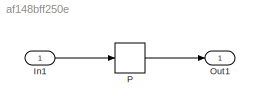
MODEL slx_af148bff250e
KIND model
CONFIG AbsTol = auto
CONFIG EnableMultiTasking = off
CONFIG FixedStep = auto
CONFIG MaxStep = auto
CONFIG MinStep = auto
CONFIG RelTol = 1e-3
CONFIG SampleTimeConstraint = Unconstrained
CONFIG Solver = FixedStepDiscrete
CONFIG SolverName = FixedStepDiscrete
CONFIG StartTime = 0.0
CONFIG StopTime = 10.0
BLOCK [Inport] In1
  IconDisplay = Port number
  OutDataTypeStr = boolean
  OutMax = 1
  OutMin = 0
BLOCK [Outport] Out1
  IconDisplay = Port number
BLOCK [CombinatorialLogic] P
  TruthTable = [0.543192575521876 0.695846362439036;0.952421334883786 0.0593577119212575;0.545870654926088 0.140810682288917;0.930001888483517 0.559057194051671]
LINE In1:1 -> P:1
LINE P:1 -> Out1:1
